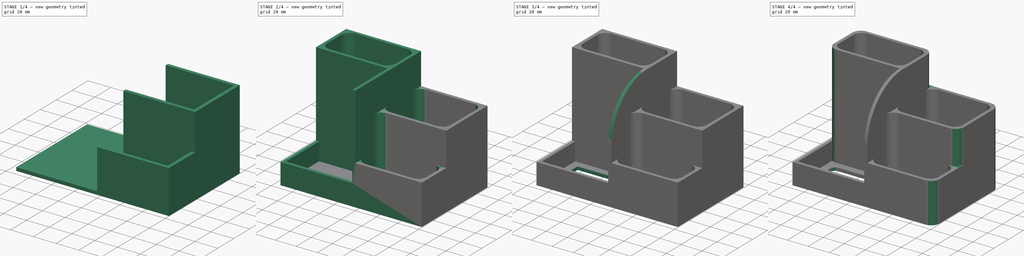
[diagram: build sequence overview — one tinted view per stage of 4, left to right]
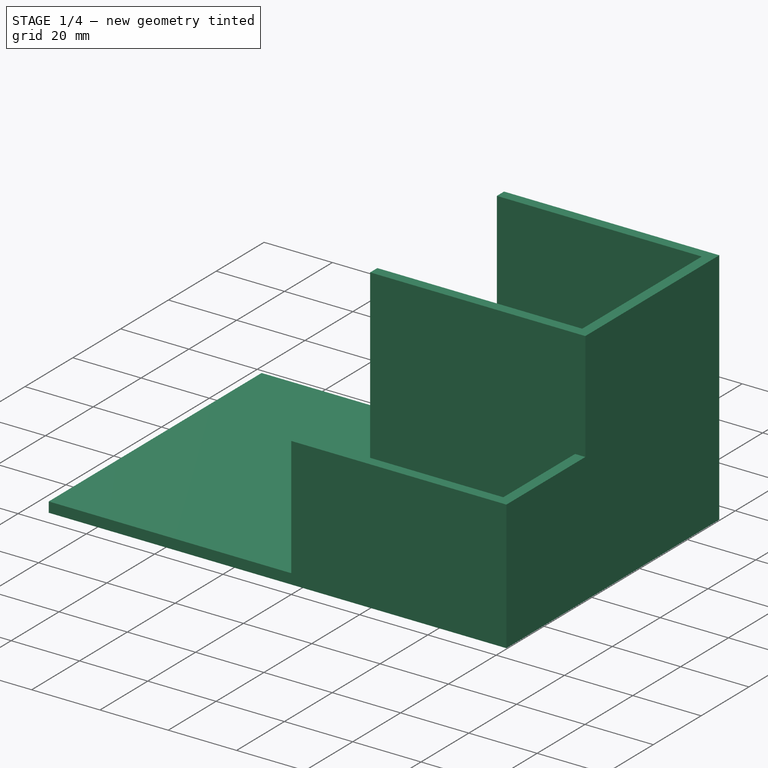
[diagram: stage 1 of 4 — iso view after this stage's code; geometry added in this stage tinted green]
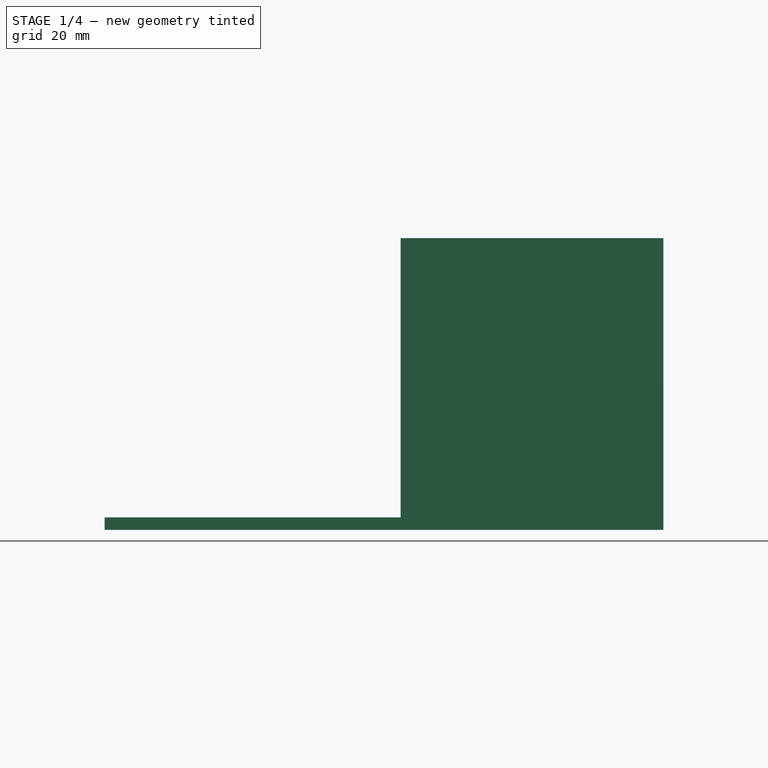
[diagram: stage 1 of 4 — front view after this stage's code; geometry added in this stage tinted green]
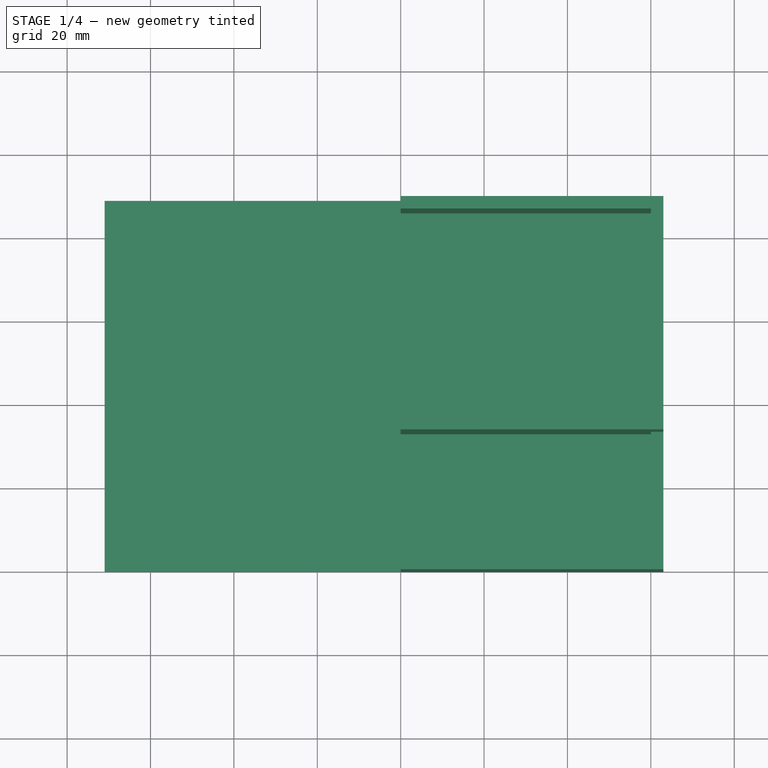
[diagram: stage 1 of 4 — top view after this stage's code; geometry added in this stage tinted green]
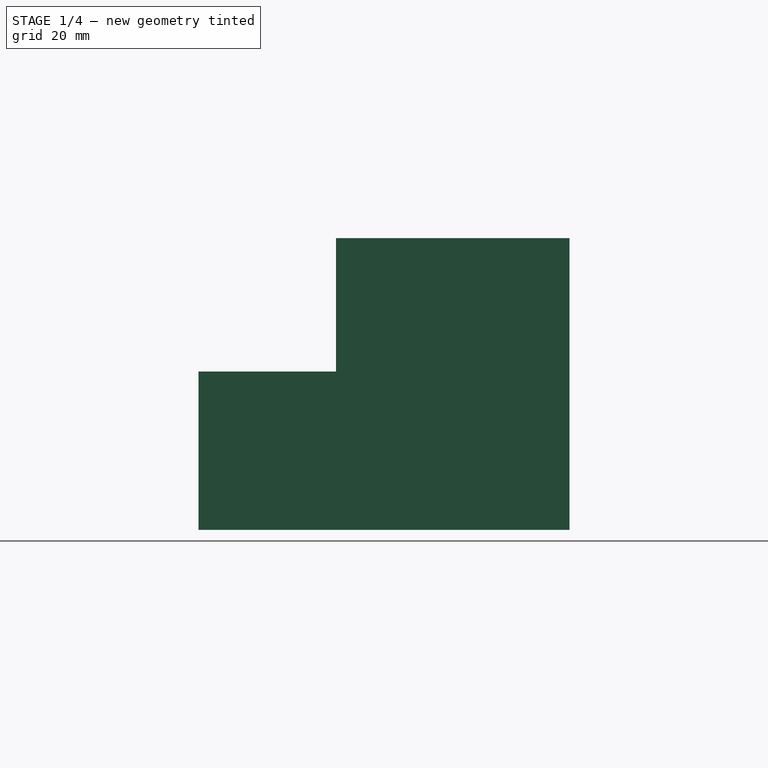
[diagram: stage 1 of 4 — right view after this stage's code; geometry added in this stage tinted green]
FCSTD DOCUMENT  (FreeCAD 1.0R39109 (Git))
Label: shaverRack
License: All rights reserved
LicenseURL: https://en.wikipedia.org/wiki/All_rights_reserved
objects: PartDesign::Pad×5, PartDesign::Fillet×4, PartDesign::SubtractiveBox×2, PartDesign::LinearPattern×2, Sketcher::SketchObject×1, Spreadsheet::Sheet×1, PartDesign::Body×1
note: 40 computed .brp shape members not serialized (recipe doc carries the construction recipe); baked Part::Feature solids carry a one-line shape summary decoded from their .brp

FEATURE [Sketcher::SketchObject] Sketch
  ArcFitTolerance = 1e-06
  AttachmentSupport = -> [XY_Plane]
  FullyConstrained = true
  MakeInternals = false
  MapMode = 5
  expr: Constraints[20] = <<mea>>.wall
  expr: Constraints[21] = <<mea>>.wall
  expr: Constraints[49] = <<mea>>.wall
  expr: Constraints[56] = <<mea>>.wall
  expr: Constraints[67] = <<mea>>.wall
  expr: Constraints[68] = <<mea>>.wall
  expr: Constraints[97] = <<mea>>.wall
  sketch-geometry (42):
    g0: LineSegment [constr] StartX=60 StartY=86 StartZ=0 EndX=63 EndY=86 EndZ=0
    g1: LineSegment [constr] StartX=60 StartY=3 StartZ=0 EndX=63 EndY=3 EndZ=0
    g2: LineSegment StartX=63 StartY=86 StartZ=0 EndX=63 EndY=89 EndZ=0
    g3: LineSegment StartX=63 StartY=3 StartZ=0 EndX=63 EndY=0 EndZ=0
    g4: LineSegment StartX=-3 StartY=86 StartZ=0 EndX=-68 EndY=86 EndZ=0
    g5: LineSegment StartX=-68 StartY=3 StartZ=0 EndX=-3 EndY=3 EndZ=0
    g6: LineSegment StartX=-3 StartY=89 StartZ=0 EndX=-71 EndY=89 EndZ=0
    g7: LineSegment StartX=-71 StartY=0 StartZ=0 EndX=-3 EndY=0 EndZ=0
    g8: LineSegment StartX=0 StartY=89 StartZ=0 EndX=0 EndY=86 EndZ=0
    g9: LineSegment StartX=-3 StartY=89 StartZ=0 EndX=0 EndY=89 EndZ=0
    g10: LineSegment StartX=0 StartY=89 StartZ=0 EndX=63 EndY=89 EndZ=0
    g11: LineSegment StartX=-3 StartY=0 StartZ=0 EndX=0 EndY=0 EndZ=0
    g12: LineSegment StartX=0 StartY=0 StartZ=0 EndX=63 EndY=0 EndZ=0
    g13: LineSegment StartX=0 StartY=33 StartZ=0 EndX=60 EndY=33 EndZ=0
    g14: LineSegment StartX=0 StartY=36 StartZ=0 EndX=60 EndY=36 EndZ=0
    g15: LineSegment StartX=0 StartY=86 StartZ=0 EndX=0 EndY=36 EndZ=0
    g16: LineSegment StartX=0 StartY=36 StartZ=0 EndX=0 EndY=33 EndZ=0
    g17: LineSegment StartX=0 StartY=33 StartZ=0 EndX=0 EndY=3 EndZ=0
    g18: LineSegment StartX=0 StartY=3 StartZ=0 EndX=0 EndY=0 EndZ=0
    g19: LineSegment StartX=-68 StartY=86 StartZ=0 EndX=-68 EndY=51 EndZ=0
    g20: LineSegment StartX=-68 StartY=51 StartZ=0 EndX=-3 EndY=51 EndZ=0
    g21: LineSegment StartX=-68 StartY=51 StartZ=0 EndX=-68 EndY=48 EndZ=0
    g22: LineSegment StartX=-68 StartY=48 StartZ=0 EndX=-3 EndY=48 EndZ=0
    g23: LineSegment StartX=-68 StartY=48 StartZ=0 EndX=-68 EndY=3 EndZ=0
    g24: LineSegment StartX=-68 StartY=51 StartZ=0 EndX=-71 EndY=51 EndZ=0
    g25: LineSegment StartX=-71 StartY=51 StartZ=0 EndX=-71 EndY=89 EndZ=0
    g26: LineSegment StartX=63 StartY=86 StartZ=0 EndX=63 EndY=33 EndZ=0
    g27: LineSegment StartX=63 StartY=33 StartZ=0 EndX=60 EndY=33 EndZ=0
    g28: LineSegment StartX=63 StartY=33 StartZ=0 EndX=63 EndY=3 EndZ=0
    g29: LineSegment StartX=0 StartY=3 StartZ=0 EndX=60 EndY=3 EndZ=0
    g30: LineSegment StartX=60 StartY=86 StartZ=0 EndX=60 EndY=36 EndZ=0
    g31: LineSegment StartX=60 StartY=33 StartZ=0 EndX=60 EndY=3 EndZ=0
    g32: LineSegment StartX=0 StartY=86 StartZ=0 EndX=60 EndY=86 EndZ=0
    g33: LineSegment StartX=-3 StartY=86 StartZ=0 EndX=0 EndY=86 EndZ=0
    g34: LineSegment StartX=-3 StartY=89 StartZ=0 EndX=-3 EndY=86 EndZ=0
    g35: LineSegment StartX=-3 StartY=86 StartZ=0 EndX=-3 EndY=51 EndZ=0
    g36: LineSegment StartX=-3 StartY=51 StartZ=0 EndX=-3 EndY=48 EndZ=0
    g37: LineSegment StartX=-3 StartY=48 StartZ=0 EndX=-3 EndY=3 EndZ=0
    g38: LineSegment StartX=-68 StartY=48 StartZ=0 EndX=-71 EndY=48 EndZ=0
    g39: LineSegment StartX=-71 StartY=48 StartZ=0 EndX=-71 EndY=51 EndZ=0
    g40: LineSegment StartX=-3 StartY=3 StartZ=0 EndX=-3 EndY=0 EndZ=0
    g41: LineSegment StartX=-71 StartY=48 StartZ=0 EndX=-71 EndY=0 EndZ=0
  constraints (110):
    c: Horizontal(g0)
    c: Horizontal(g1)
    c: Vertical(g2)
    c: Vertical(g3)
    c: Horizontal(g4)
    c: Horizontal(g5)
    c: Horizontal(g6)
    c: Vertical(g8)
    c: Coincident(g9,g6)
    c: Coincident(g9,g8)
    c: Horizontal(g9)
    c: Coincident(g10,g8)
    c: Coincident(g10,g2)
    c: Horizontal(g10)
    c: Coincident(g11,g7)
    c: Horizontal(g11)
    c: Coincident(g12,g3)
    c: Horizontal(g12)
    c: Horizontal(g13)
    c: Horizontal(g14)
    c: Distance(g0,g10) = 3
    c: Distance(g13,g14) = 3
    c: Horizontal(g7)
    c: Coincident(g15,g8)
    c: Coincident(g15,g14)
    c: Vertical(g15)
    c: Coincident(g16,g14)
    c: Coincident(g16,g13)
    c: Vertical(g16)
    c: Coincident(g17,g13)
    c: Vertical(g17)
    c: Coincident(g18,g17)
    c: Coincident(g18,g11)
    c: Vertical(g18)
    c: Coincident(g12,g11)
    c: Coincident(g11,g-1)
    c: Coincident(g3,g1)
    c: Coincident(g2,g0)
    c: Coincident(g19,g4)
    c: Vertical(g19)
    c: Coincident(g20,g19)
    c: Horizontal(g20)
    c: Coincident(g21,g19)
    c: Vertical(g21)
    c: Coincident(g22,g21)
    c: Horizontal(g22)
    c: Coincident(g23,g21)
    c: Coincident(g23,g5)
    c: Vertical(g23)
    c: DistanceY(g21,g21) = 3
    c: DistanceX(g4,g4) = 65
    c: Coincident(g24,g19)
    c: Coincident(g25,g24)
    c: Coincident(g25,g6)
    c: Vertical(g25)
    c: Horizontal(g24)
    c: DistanceX(g24,g24) = 3
    c: DistanceX(g13,g13) = 60
    c: Coincident(g26,g0)
    c: Vertical(g26)
    c: Coincident(g27,g26)
    c: Coincident(g27,g13)
    c: Horizontal(g27)
    c: Coincident(g28,g26)
    c: Coincident(g28,g1)
    c: Vertical(g28)
    c: Coincident(g29,g17)
    c: DistanceY(g3,g3) = 3
    c: DistanceX(g0,g0) = 3
    c: DistanceY(g17,g17) = 30
    c: Coincident(g29,g1)
    c: Coincident(g30,g14)
    c: Vertical(g30)
    c: Coincident(g31,g13)
    c: Coincident(g31,g1)
    c: Tangent(g31,g30)
    c: Tangent(g5,g29)
    c: Coincident(g32,g8)
    c: Coincident(g32,g30)
    c: Horizontal(g32)
    c: Coincident(g33,g4)
    c: Coincident(g33,g8)
    c: Horizontal(g33)
    c: Coincident(g30,g0)
    c: DistanceY(g15,g15) = 50
    c: Coincident(g34,g6)
    c: Coincident(g34,g4)
    c: Vertical(g34)
    c: Coincident(g35,g4)
    c: Coincident(g35,g20)
    c: Vertical(g35)
    c: Coincident(g36,g20)
    c: Coincident(g36,g22)
    c: Vertical(g36)
    c: Coincident(g37,g22)
    c: Coincident(g37,g5)
    c: Vertical(g37)
    c: DistanceX(g33,g33) = 3
    c: PointOnObject(g7,g37)
    c: DistanceY(g37,g37) = 45
    c: Coincident(g38,g21)
    c: Horizontal(g38)
    c: Coincident(g39,g38)
    c: Coincident(g39,g24)
    c: Coincident(g40,g5)
    c: Coincident(g40,g7)
    c: Coincident(g41,g38)
    c: Coincident(g41,g7)
    c: Vertical(g41)
    c: Equal(g38,g24)
FEATURE [Spreadsheet::Sheet] Spreadsheet  label="mea"
  cells = A1='wall; B1(wall)==3 mm
FEATURE [PartDesign::Pad] Pad005
  Direction = (0,0,1)
  Length = 3
  Length2 = 10
  Profile = -> Sketch [Edge18,Edge17,Edge38,Edge39,Edge28,Edge40,Edge26,Edge27,Edge11,Edge10,Edge9,Edge20,Edge19]
  ReferenceAxis = -> Sketch [N_Axis]
  Refine = true
  Suppressed = false
  Type = 0
  expr: Length = <<mea>>.wall
FEATURE [PartDesign::Pad] Pad001
  BaseFeature = -> Pad005
  Direction = (0,0,1)
  Length = 38
  Length2 = 10
  Profile = -> Sketch [Edge11,Edge25,Edge12,Edge10,Edge9,Edge13,Edge21]
  ReferenceAxis = -> Sketch [N_Axis]
  Refine = true
  Suppressed = false
  Type = 0
  expr: Length = <<mea>>.wall + 35 mm
FEATURE [PartDesign::Pad] Pad002
  BaseFeature = -> Pad001
  Direction = (0,0,1)
  Length = 70
  Length2 = 10
  Profile = -> Sketch [Edge33,Edge29,Edge28,Edge26,Edge27,Edge32,Edge25,Edge24,Edge31,Edge23]
  ReferenceAxis = -> Sketch [N_Axis]
  Refine = true
  Suppressed = false
  Type = 0
  expr: Length = 70
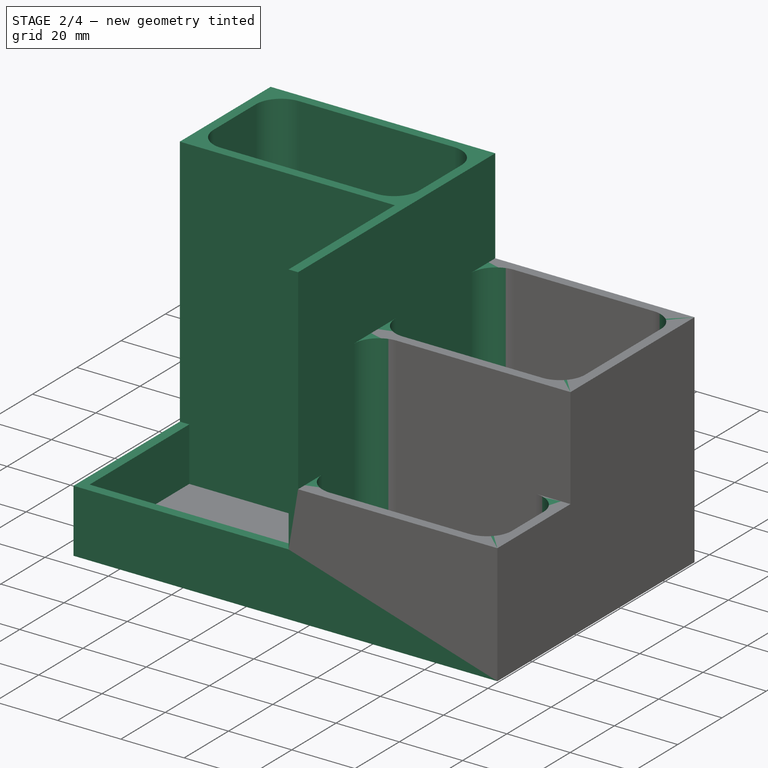
[diagram: stage 2 of 4 — iso view after this stage's code; geometry added in this stage tinted green]
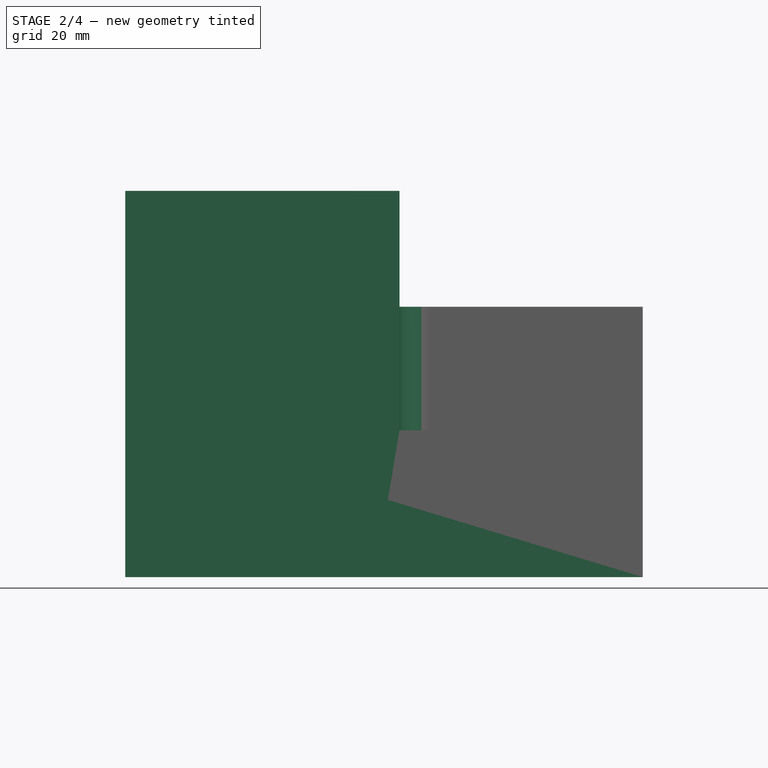
[diagram: stage 2 of 4 — front view after this stage's code; geometry added in this stage tinted green]
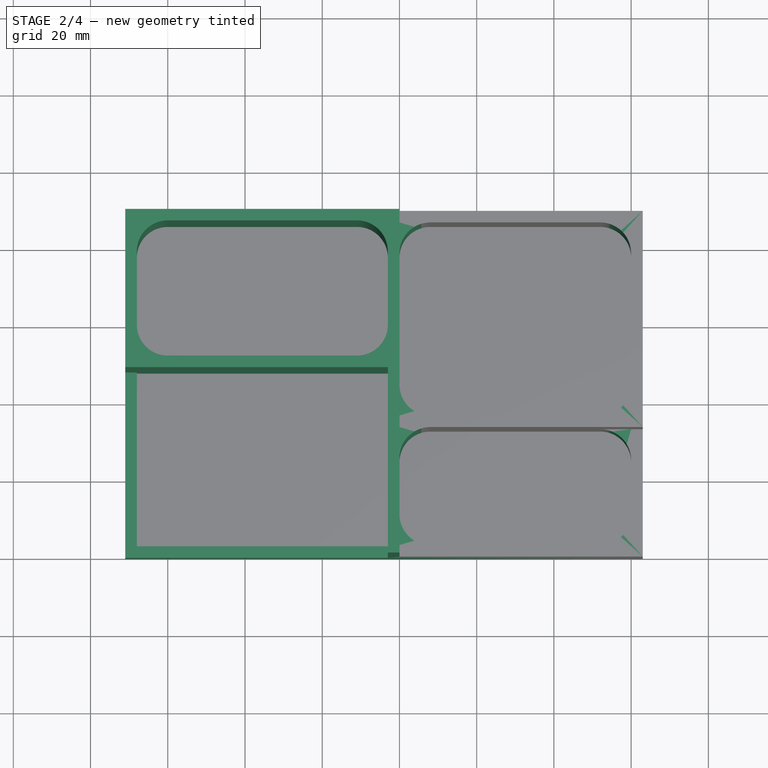
[diagram: stage 2 of 4 — top view after this stage's code; geometry added in this stage tinted green]
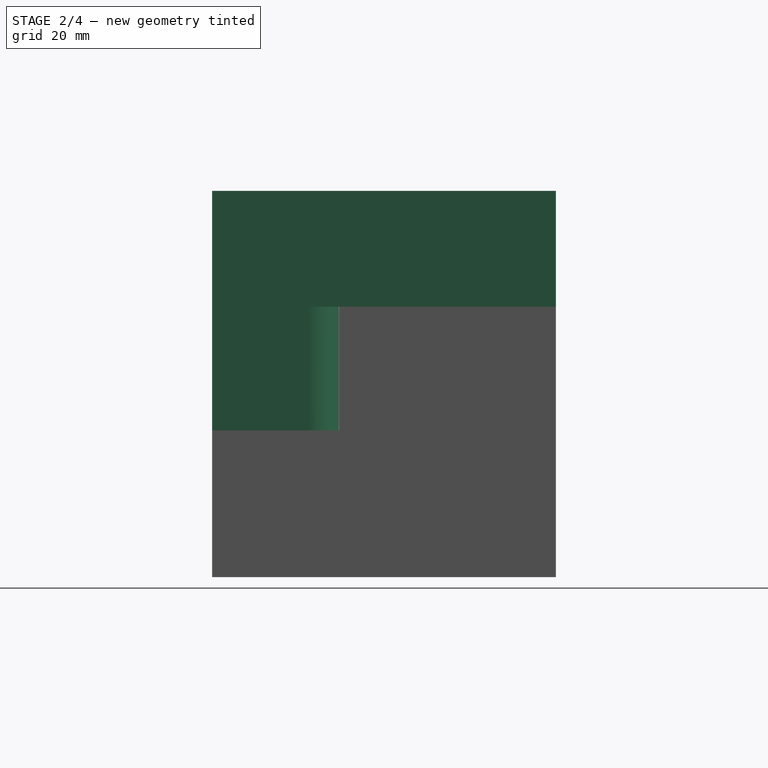
[diagram: stage 2 of 4 — right view after this stage's code; geometry added in this stage tinted green]
FEATURE [PartDesign::Pad] Pad003
  BaseFeature = -> Pad002
  Direction = (0,0,1)
  Length = 100
  Length2 = 10
  Profile = -> Sketch [Edge20,Edge8,Edge21,Edge17,Edge16,Edge5,Edge38,Edge3,Edge36,Edge39,Edge35,Edge40,Edge29,Edge30,Edge2,Edge7,Edge22,Edge23]
  ReferenceAxis = -> Sketch [N_Axis]
  Refine = true
  Suppressed = false
  Type = 0
FEATURE [PartDesign::Pad] Pad004
  BaseFeature = -> Pad003
  Direction = (0,0,1)
  Length = 20
  Length2 = 10
  Profile = -> Sketch [Edge18,Edge16,Edge15,Edge19,Edge14,Edge8]
  ReferenceAxis = -> Sketch [N_Axis]
  Refine = true
  Suppressed = false
  Type = 0
FEATURE [PartDesign::Fillet] Fillet
  Base = -> Pad004 [Edge54,Edge56,Edge53,Edge58,Edge25,Edge65,Edge68,Edge27,Edge69,Edge31,Edge29,Edge73]
  BaseFeature = -> Pad004
  Radius = 8
  Refine = true
  SupportTransform = false
  Suppressed = false
  UseAllEdges = false
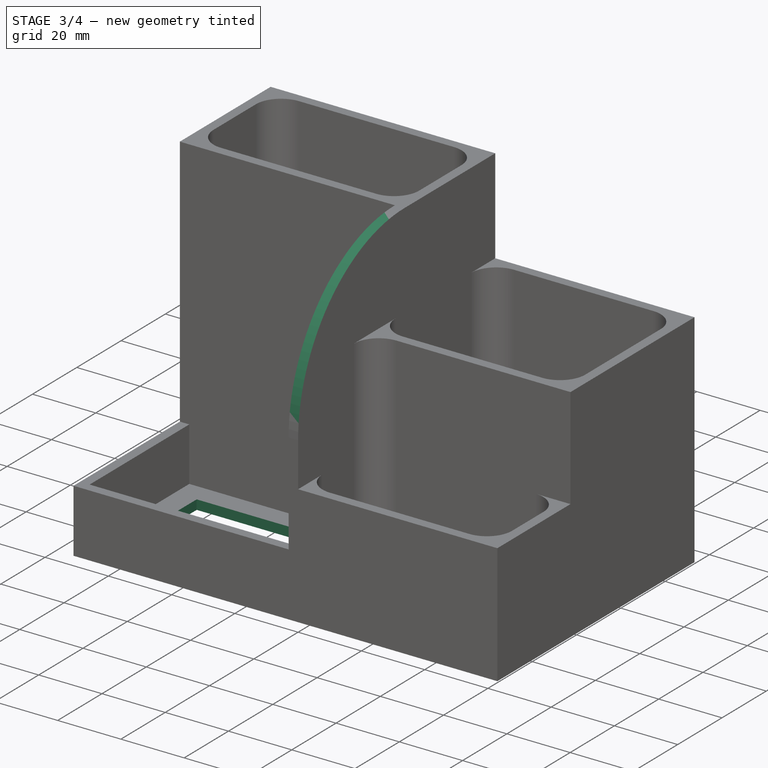
[diagram: stage 3 of 4 — iso view after this stage's code; geometry added in this stage tinted green]
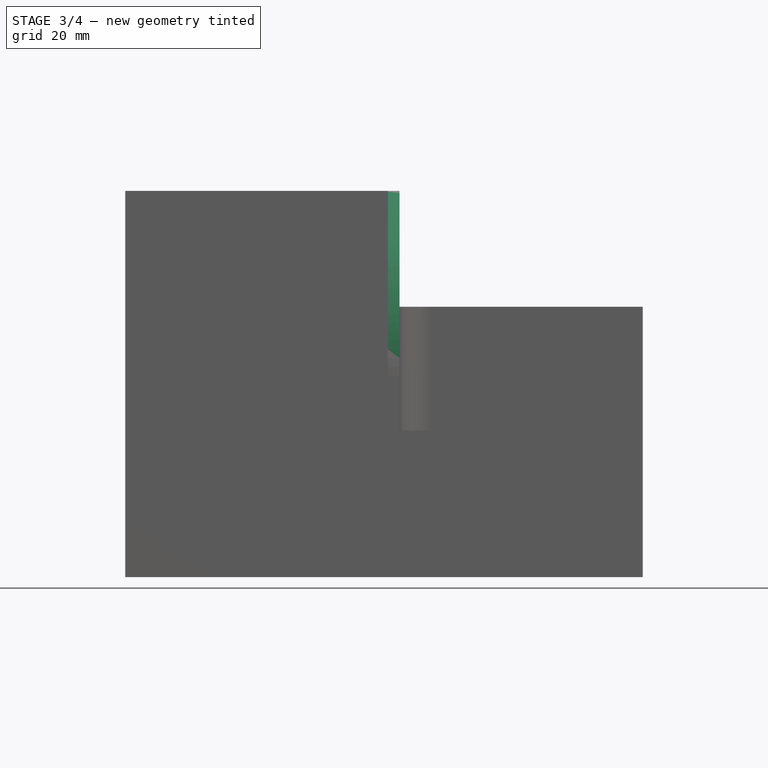
[diagram: stage 3 of 4 — front view after this stage's code; geometry added in this stage tinted green]
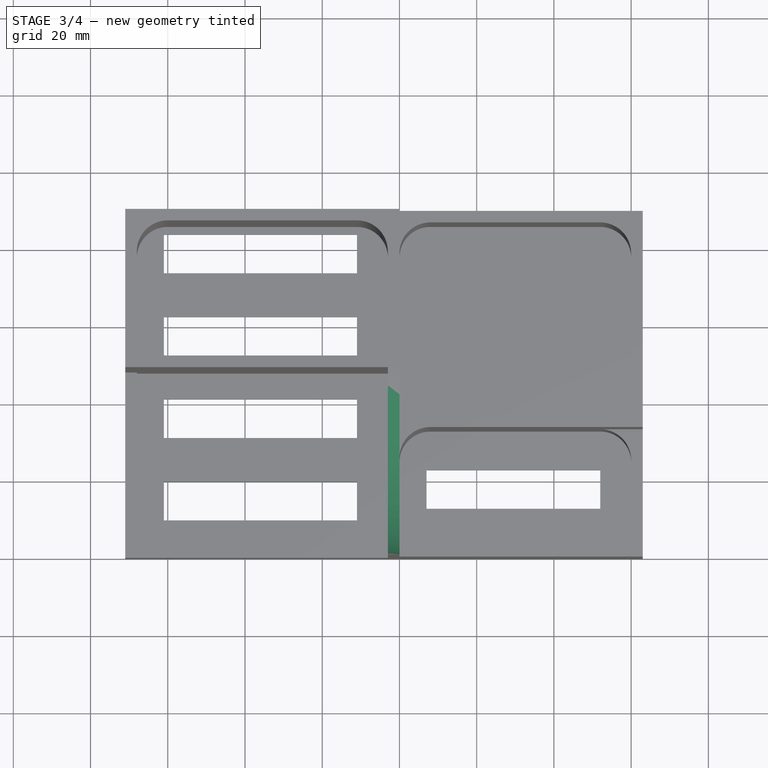
[diagram: stage 3 of 4 — top view after this stage's code; geometry added in this stage tinted green]
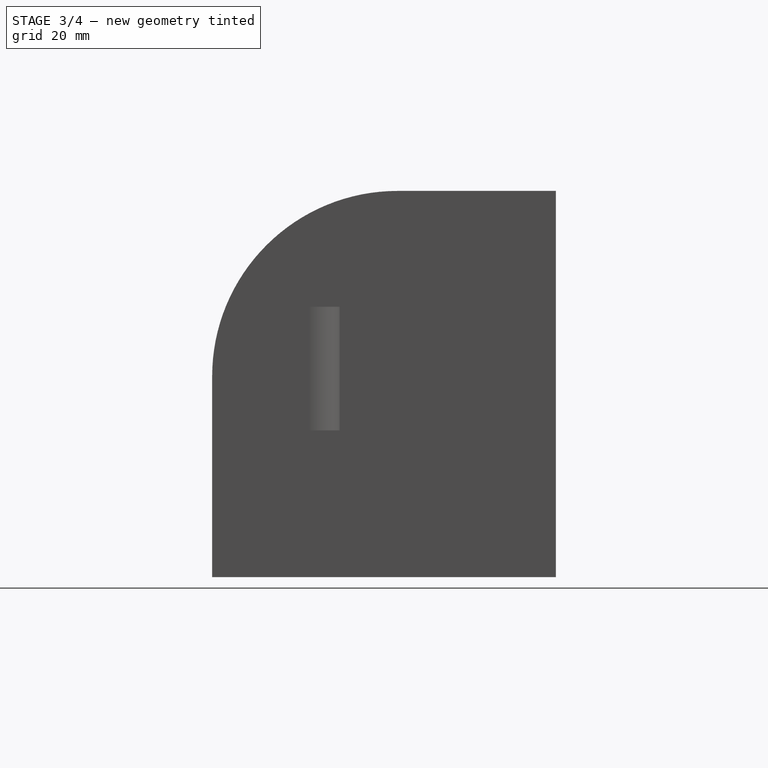
[diagram: stage 3 of 4 — right view after this stage's code; geometry added in this stage tinted green]
FEATURE [PartDesign::Fillet] Fillet001
  Base = -> Fillet [Edge10]
  BaseFeature = -> Fillet
  Radius = 48
  Refine = true
  SupportTransform = false
  Suppressed = false
  UseAllEdges = false
FEATURE [PartDesign::SubtractiveBox] Box
  AttacherType = Attacher::AttachEngine3D
  AttachmentOffset = pos=(-61,10,0) rot=(0,0,1;0rad)
  AttachmentSupport = -> [XY_Plane]
  BaseFeature = -> Fillet001
  Height = 10
  Length = 50
  MapMode = 5
  Placement = pos=(-61,10,0) rot=(0,0,1;0rad)
  Refine = true
  Suppressed = false
  Width = 10
FEATURE [PartDesign::LinearPattern] LinearPattern
  BaseFeature = -> Box
  Direction = -> Y_Axis
  Length = 64
  Mode = 0
  Occurrences = 4
  Offset = 21.3333
  Originals = -> [Box]
  Placement = pos=(-61,10,0) rot=(0,0,1;0rad)
  Refine = true
  Suppressed = false
  TransformMode = 0
FEATURE [PartDesign::SubtractiveBox] Box001
  AttacherType = Attacher::AttachEngine3D
  AttachmentOffset = pos=(7,13,0) rot=(0,0,1;0rad)
  AttachmentSupport = -> [XY_Plane]
  BaseFeature = -> LinearPattern
  Height = 10
  Length = 45
  MapMode = 5
  Placement = pos=(7,13,0) rot=(0,0,1;0rad)
  Refine = true
  Suppressed = false
  Width = 10
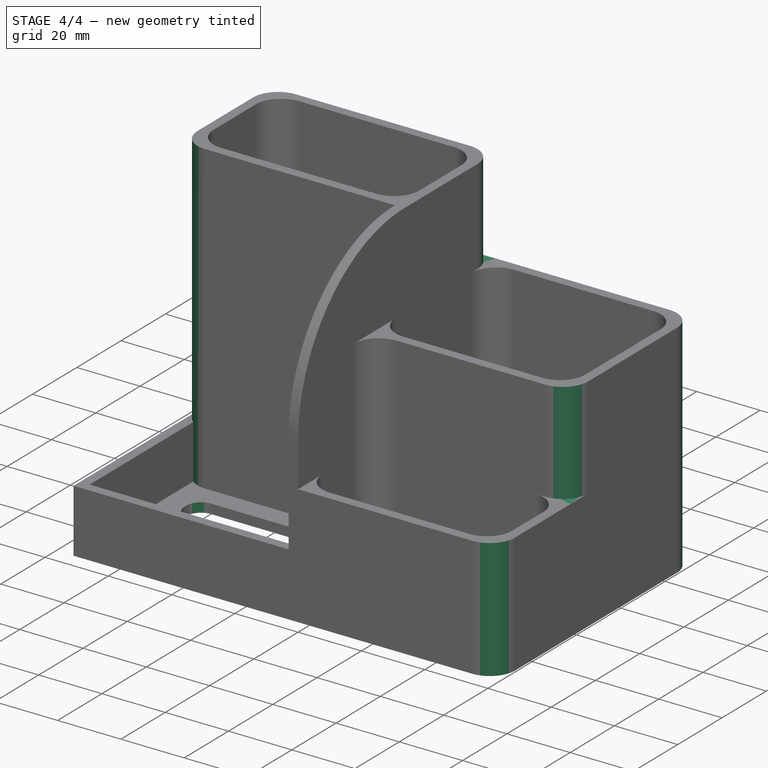
[diagram: stage 4 of 4 — iso view after this stage's code; geometry added in this stage tinted green]
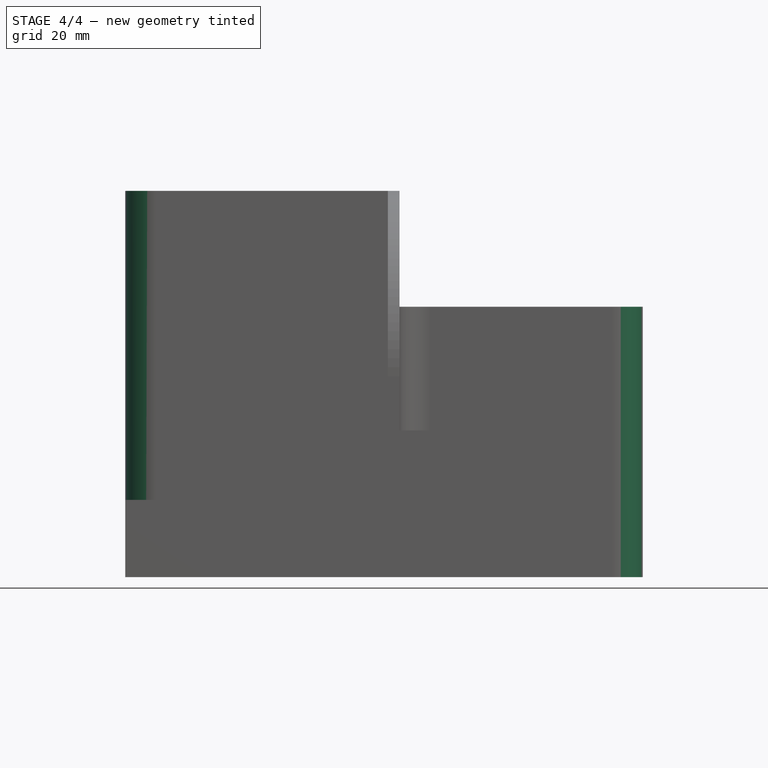
[diagram: stage 4 of 4 — front view after this stage's code; geometry added in this stage tinted green]
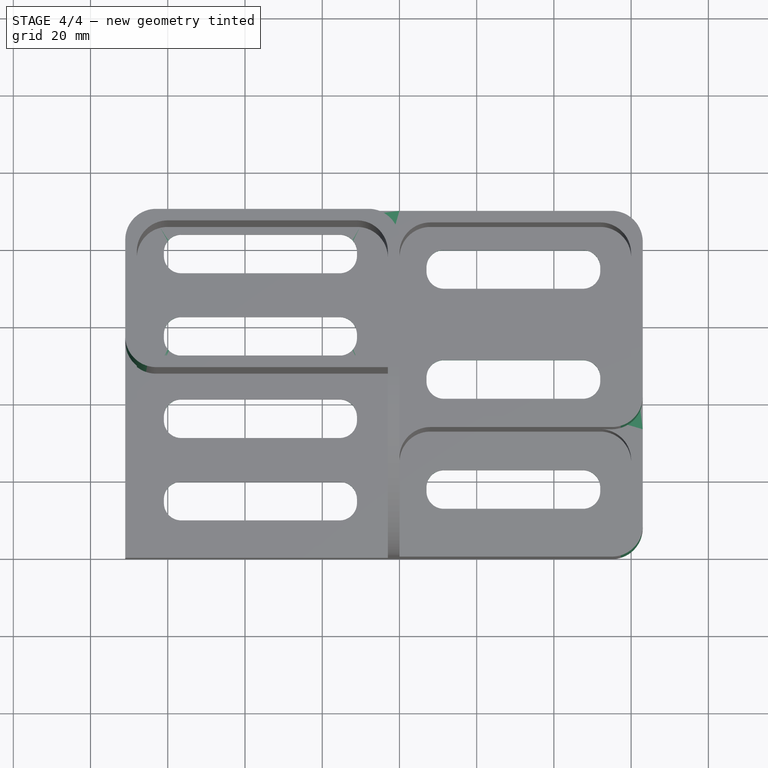
[diagram: stage 4 of 4 — top view after this stage's code; geometry added in this stage tinted green]
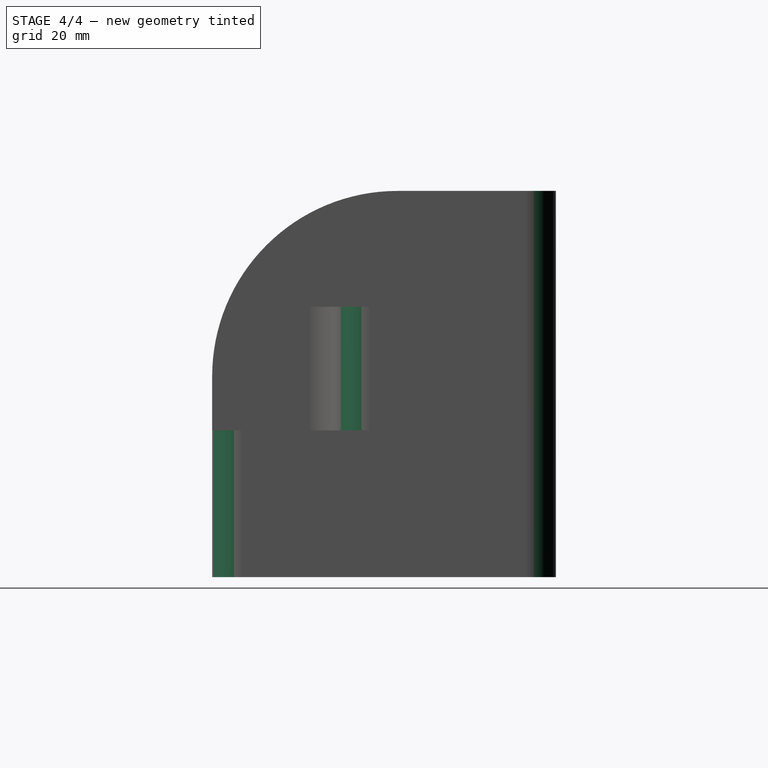
[diagram: stage 4 of 4 — right view after this stage's code; geometry added in this stage tinted green]
FEATURE [PartDesign::LinearPattern] LinearPattern001
  BaseFeature = -> Box001
  Direction = -> Y_Axis
  Length = 57
  Mode = 0
  Occurrences = 3
  Offset = 28.5
  Originals = -> [Box001]
  Placement = pos=(7,13,0) rot=(0,0,1;0rad)
  Refine = true
  Suppressed = false
  TransformMode = 0
FEATURE [PartDesign::Fillet] Fillet002
  Base = -> LinearPattern001 [Edge192,Edge193,Edge191,Edge190,Edge195,Edge197,Edge196,Edge194,Edge205,Edge201,Edge184,Edge180,Edge186,Edge178,Edge182,Edge204,Edge200,Edge188,Edge198,Edge202,Edge183,Edge179,Edge187,Edge189,Edge181,Edge185,Edge203,Edge199]
  BaseFeature = -> LinearPattern001
  Placement = pos=(7,13,0) rot=(0,0,1;0rad)
  Radius = 4.5
  Refine = true
  SupportTransform = false
  Suppressed = false
  UseAllEdges = false
FEATURE [PartDesign::Fillet] Fillet003
  Base = -> Fillet002 [Edge152,Edge192,Edge193,Edge155,Edge151,Edge52]
  BaseFeature = -> Fillet002
  Placement = pos=(7,13,0) rot=(0,0,1;0rad)
  Radius = 8
  Refine = true
  SupportTransform = false
  Suppressed = false
  UseAllEdges = false
FEATURE [PartDesign::Body] Body
  AllowCompound = false
  Group = -> [Sketch,Pad005,Pad001,Pad002,Pad003,Pad004,Fillet,Fillet001,Box,LinearPattern,Box001,LinearPattern001,Fillet002,Fillet003]
  Origin = -> Origin
  Tip = -> Fillet003
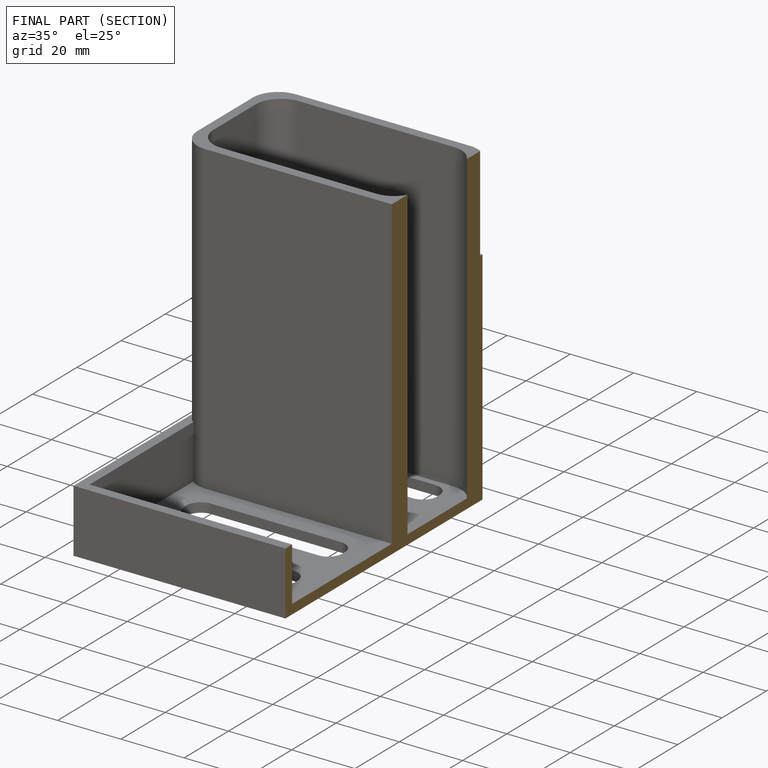
[diagram: finished part — half-section view (interior)]
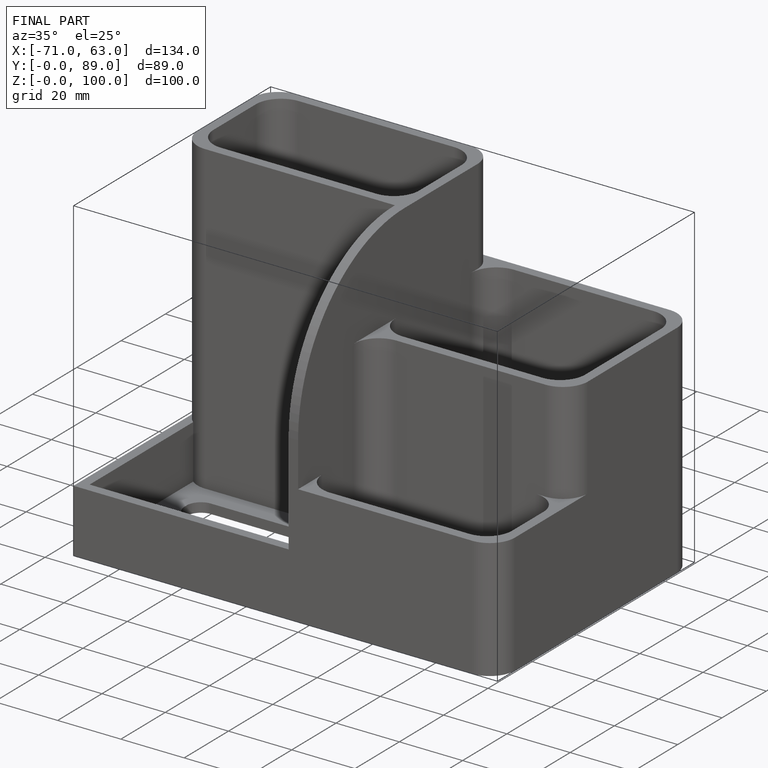
[diagram: finished part — iso view with bounding-box wireframe]
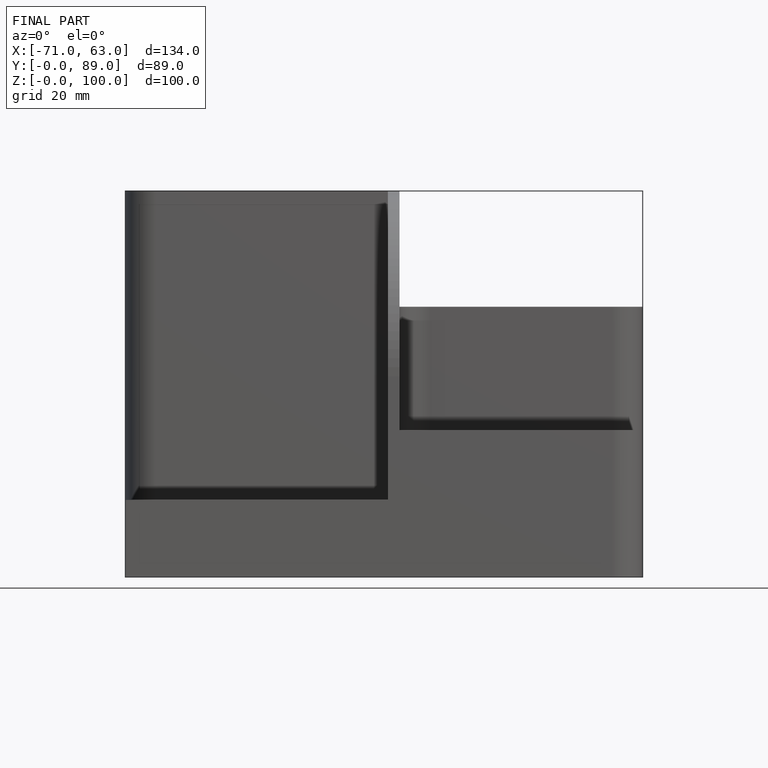
[diagram: finished part — front view with bounding-box wireframe]
